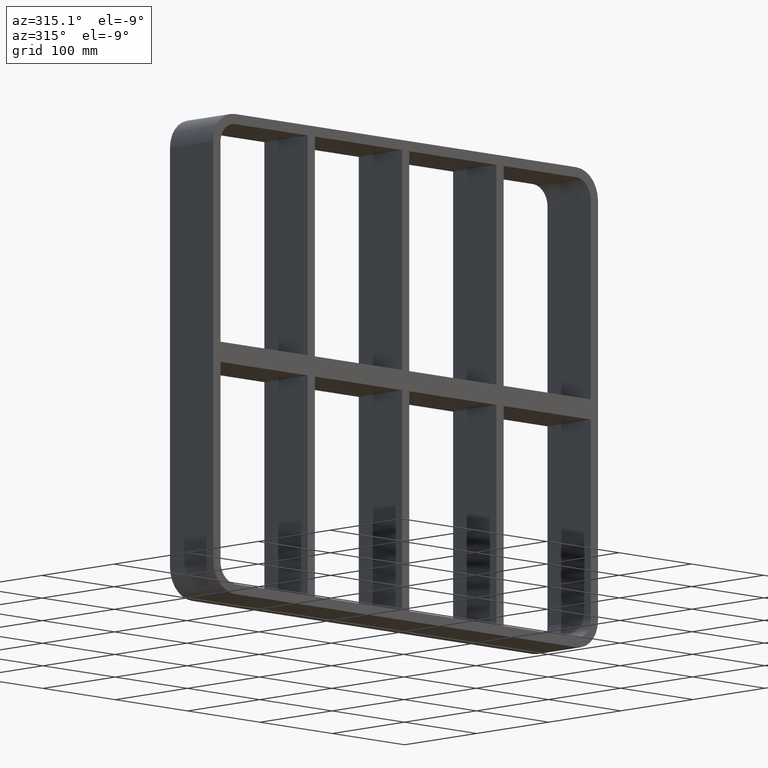
[diagram: clean part render]
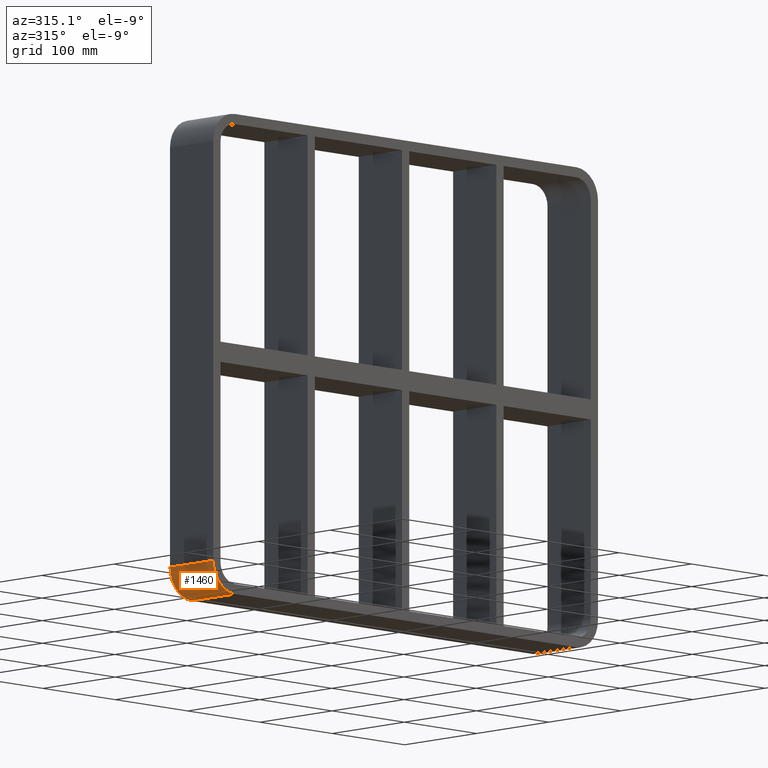
[diagram: same view with one face highlighted and labeled with its STEP entity id]
A machine part, auxiliary view. The second image highlights one B-rep face of the part: STEP entity #1460.
In plain terms, the highlighted cylindrical surface (edge-blend (fillet) strip) has radius 30 mm, axis along (0, 1, 0).
Its self-contained STEP definition (entity closure, byte-faithful):
#522=CARTESIAN_POINT('',(-266.0,-3.0,-208.0));
#523=VERTEX_POINT('',#522);
#530=CARTESIAN_POINT('',(-236.0,-3.0,-238.0));
#531=VERTEX_POINT('',#530);
#532=CARTESIAN_POINT('',(-236.0,-3.0,-208.0));
#533=DIRECTION('',(0.0,1.0,0.0));
#534=DIRECTION('',(-0.707106781186547,0.0,-0.707106781186547));
#535=AXIS2_PLACEMENT_3D('',#532,#533,#534);
#536=CIRCLE('',#535,30.0);
#537=EDGE_CURVE('',#531,#523,#536,.T.);
#829=CARTESIAN_POINT('',(-236.0,57.0,-238.0));
#830=VERTEX_POINT('',#829);
#837=CARTESIAN_POINT('',(-266.0,57.0,-208.0));
#838=VERTEX_POINT('',#837);
#839=CARTESIAN_POINT('',(-236.0,57.0,-208.0));
#840=DIRECTION('',(0.0,-1.0,0.0));
#841=DIRECTION('',(-0.707106781186547,0.0,-0.707106781186547));
#842=AXIS2_PLACEMENT_3D('',#839,#840,#841);
#843=CIRCLE('',#842,30.0);
#844=EDGE_CURVE('',#838,#830,#843,.T.);
#1439=CARTESIAN_POINT('',(-236.0,0.0,-208.0));
#1440=DIRECTION('',(0.0,1.0,0.0));
#1441=DIRECTION('',(-0.707106781186547,0.0,-0.707106781186547));
#1442=AXIS2_PLACEMENT_3D('',#1439,#1440,#1441);
#1443=CYLINDRICAL_SURFACE('',#1442,30.000000000000004);
#1444=ORIENTED_EDGE('',*,*,#844,.T.);
#1445=CARTESIAN_POINT('',(-236.0,57.0,-238.0));
#1446=DIRECTION('',(0.0,-1.0,0.0));
#1447=VECTOR('',#1446,60.0);
#1448=LINE('',#1445,#1447);
#1449=EDGE_CURVE('',#830,#531,#1448,.T.);
#1450=ORIENTED_EDGE('',*,*,#1449,.T.);
#1451=ORIENTED_EDGE('',*,*,#537,.T.);
#1452=CARTESIAN_POINT('',(-266.0,-3.0,-208.0));
#1453=DIRECTION('',(0.0,1.0,0.0));
#1454=VECTOR('',#1453,60.0);
#1455=LINE('',#1452,#1454);
#1456=EDGE_CURVE('',#523,#838,#1455,.T.);
#1457=ORIENTED_EDGE('',*,*,#1456,.T.);
#1458=EDGE_LOOP('',(#1444,#1450,#1451,#1457));
#1459=FACE_OUTER_BOUND('',#1458,.T.);
#1460=ADVANCED_FACE('',(#1459),#1443,.T.);